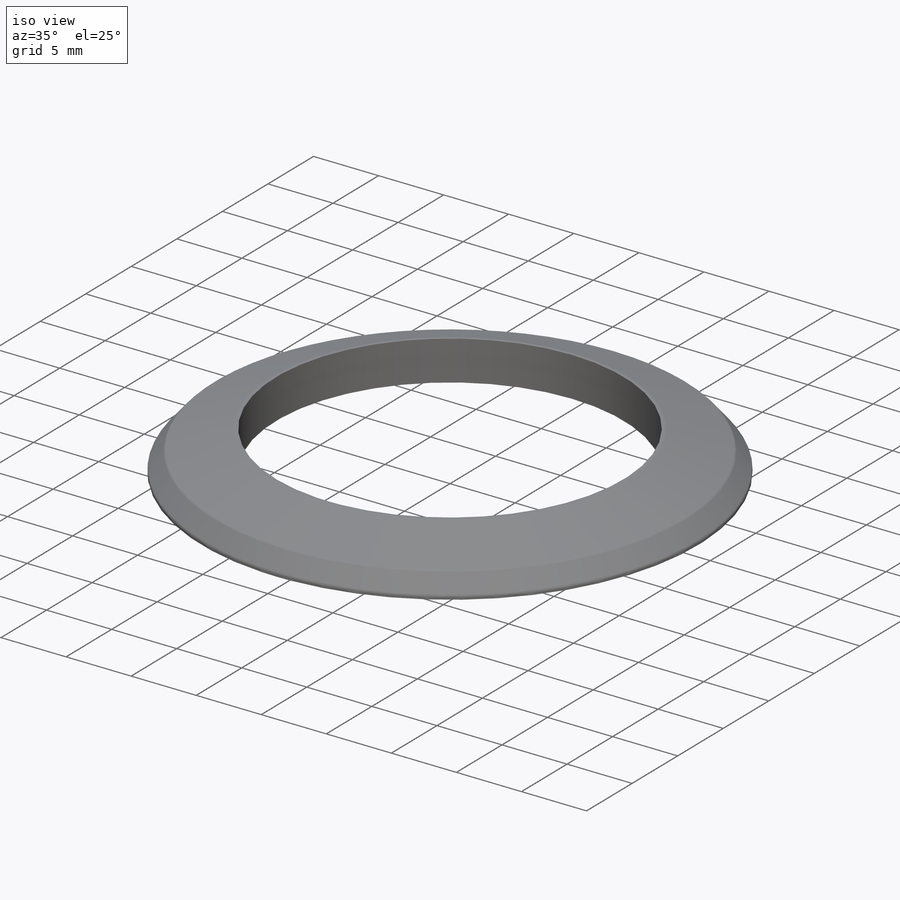
[diagram: iso view]
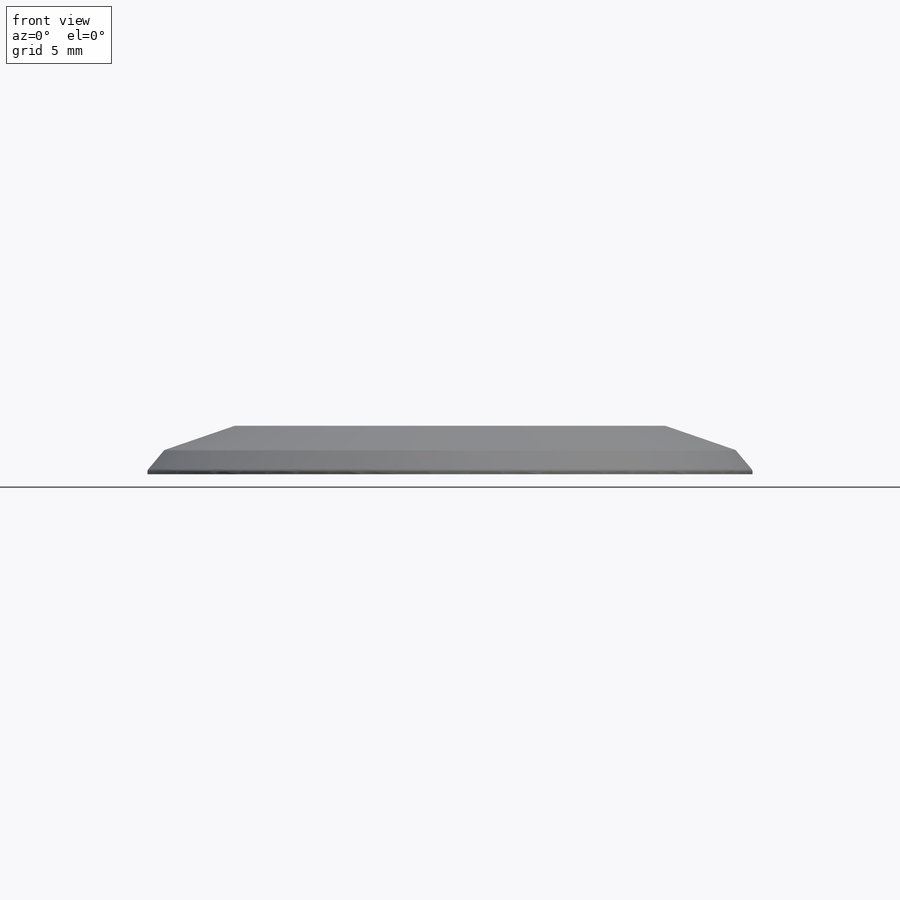
[diagram: front view]
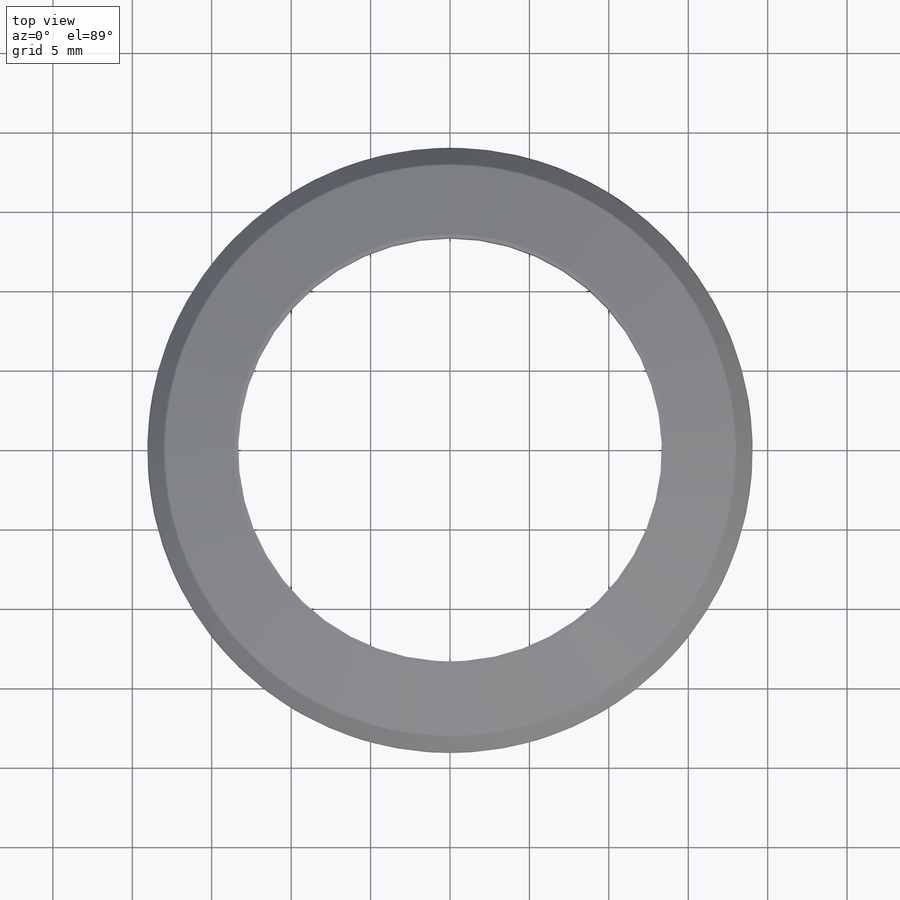
[diagram: top view]
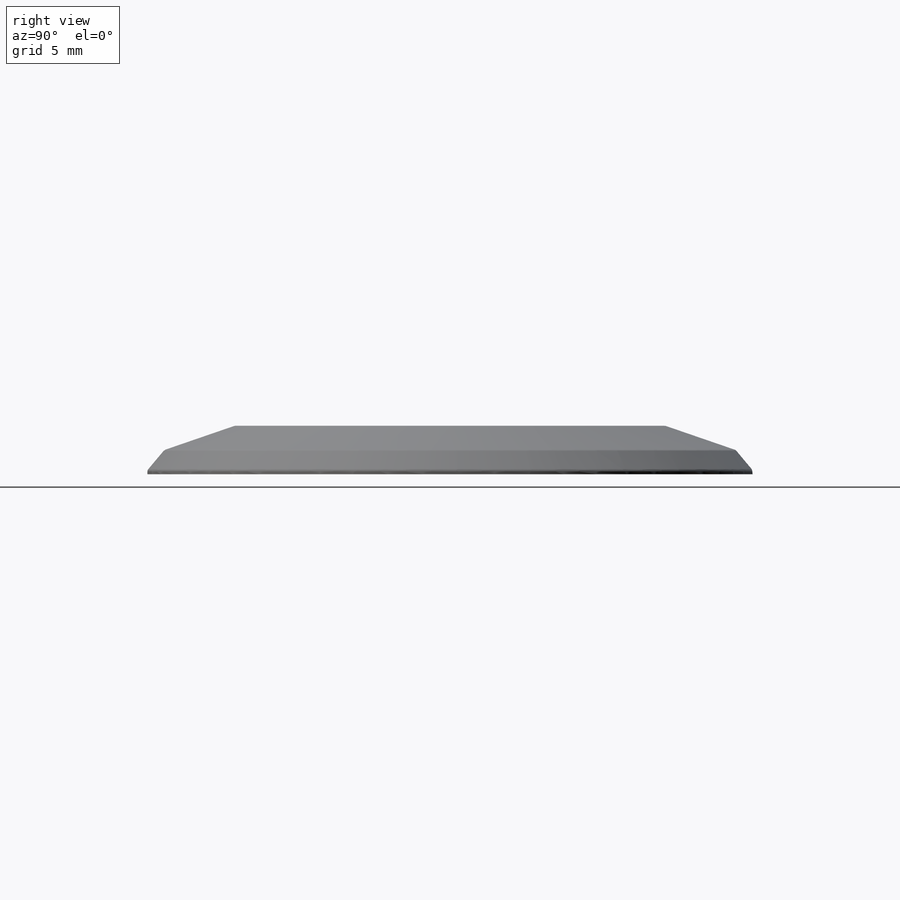
[diagram: right view]
SOLIDWORKS PART (.sldprt)
format: sldprt  version: not decoded by parser v0  size: 207,872 bytes
history: native  units: mm
features: sketch x2, extrude x2, chamfer x2, material x1, fillet x1 (+11 scaffold rows collapsed)
feature tree (19):
  scaffold x11  (default folders/planes/origin — collapsed)
  material  "Material <not specified>"
  sketch  "Sketch1"  dims[D1=38.1mm D2=26.67mm]
  extrude  "Extrude1"  Depth=1.524mm
  chamfer  "Chamfer1"  Distance=1.27mm Angle=40deg
  sketch  "Sketch2"
  extrude  "Extrude2"  Depth=1.524mm
  chamfer  "Chamfer2"  Distance=1.524mm Angle=71deg
  fillet  "Fillet1"  Radius=0.254mm
decode coverage: 6 of 7 modeling features carry decoded parameters
note: suppression state not decoded; provenance and decode notes live in map.json
